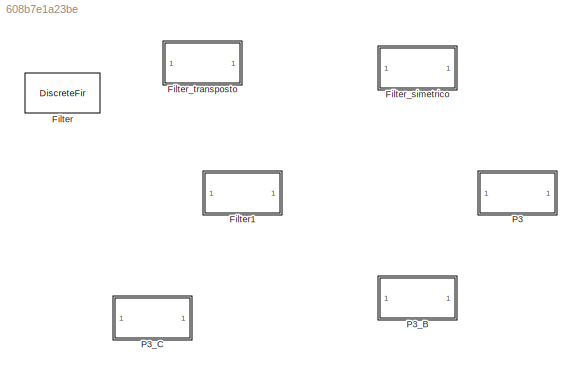
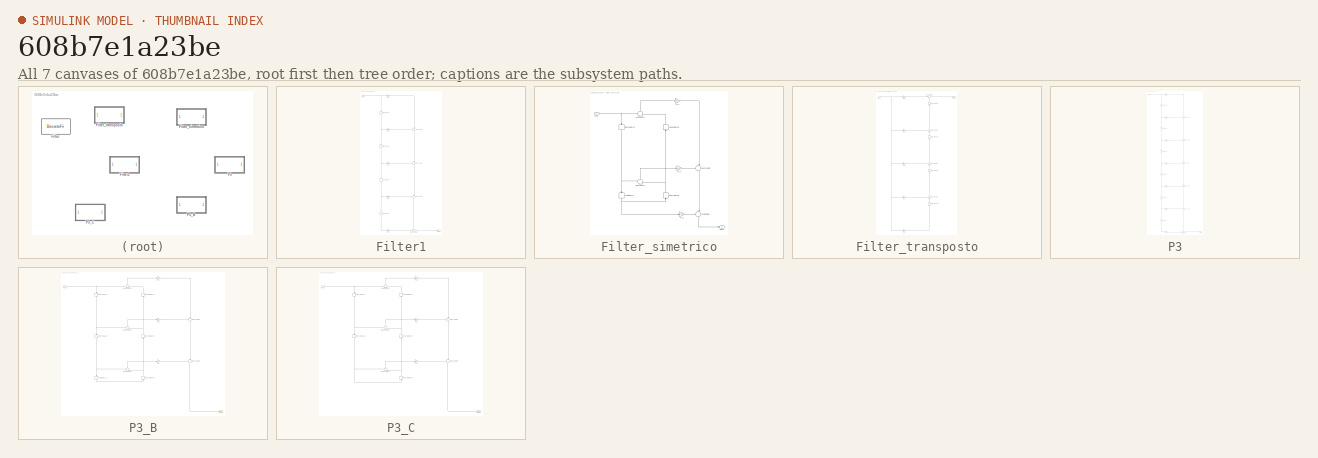
[diagram: thumbnail index - all 7 canvases of the model, root first then tree order]
MODEL slx_608b7e1a23be
KIND model
CONFIG AbsTol = auto
CONFIG FixedStep = auto
CONFIG MaxStep = auto
CONFIG MinStep = auto
CONFIG RelTol = 1e-3
CONFIG SampleTimeConstraint = Unconstrained
CONFIG Solver = ode45
CONFIG SolverMode = Auto
CONFIG SolverName = ode45
CONFIG StartTime = 0.0
CONFIG StopTime = 10.0
BLOCK [DiscreteFir] Filter
  Coefficients = [-1.3322676295501878e-16 -0.381966011250105097 0.5 -0.381966011250105097 -1.3322676295501878e-16]
  InputProcessing = Columns as channels (frame based)
  Ports = [1, 1]
  Tag = BlockMethodSubSystem
BLOCK [SubSystem] Filter1
  ErrorFcn = dspFilterRealizedInBasicElemsAlgLoopErrFcnCallback
  Ports = [1, 1]
  RequestExecContextInheritance = off
  Tag = FilterWizardSubSystem
  UserDataPersistent = on
BLOCK [Delay] Filter1/BodyDelay2
  DelayLength = 1
  InitialCondition = 0
  InputPortMap = u0
  InputProcessing = Columns as channels (frame based)
  Ports = [1, 1]
BLOCK [Delay] Filter1/BodyDelay3
  DelayLength = 1
  InitialCondition = 0
  InputPortMap = u0
  InputProcessing = Columns as channels (frame based)
  Ports = [1, 1]
BLOCK [Delay] Filter1/BodyDelay4
  DelayLength = 1
  InitialCondition = 0
  InputPortMap = u0
  InputProcessing = Columns as channels (frame based)
  Ports = [1, 1]
BLOCK [Delay] Filter1/BodyDelay5
  DelayLength = 1
  InitialCondition = 0
  InputPortMap = u0
  InputProcessing = Columns as channels (frame based)
  Ports = [1, 1]
BLOCK [Sum] Filter1/BodyLSum2
  IconShape = round
  InputSameDT = off
  Inputs = ++|
  Ports = [2, 1]
  RndMeth = Nearest
BLOCK [Sum] Filter1/BodyLSum3
  IconShape = round
  InputSameDT = off
  Inputs = ++|
  Ports = [2, 1]
  RndMeth = Nearest
BLOCK [Sum] Filter1/BodyLSum4
  IconShape = round
  InputSameDT = off
  Inputs = ++|
  Ports = [2, 1]
  RndMeth = Nearest
BLOCK [Sum] Filter1/BodyLSum5
  IconShape = round
  InputSameDT = off
  Inputs = ++|
  Ports = [2, 1]
  RndMeth = Nearest
BLOCK [Inport] Filter1/Input
  IconDisplay = Port number
BLOCK [Outport] Filter1/Output
  IconDisplay = Port number
BLOCK [Gain] Filter1/b(1)
  Gain = -1.3322676295501878e-16
  ParamDataTypeStr = double
  RndMeth = Nearest
BLOCK [Gain] Filter1/b(2)
  Gain = -0.381966011250105097
  ParamDataTypeStr = double
  RndMeth = Nearest
BLOCK [Gain] Filter1/b(3)
  Gain = 0.5
  ParamDataTypeStr = double
  RndMeth = Nearest
BLOCK [Gain] Filter1/b(4)
  Gain = -0.381966011250105097
  ParamDataTypeStr = double
  RndMeth = Nearest
BLOCK [Gain] Filter1/b(5)
  Gain = -1.3322676295501878e-16
  ParamDataTypeStr = double
  RndMeth = Nearest
BLOCK [SubSystem] Filter_simetrico
  ErrorFcn = dspFilterRealizedInBasicElemsAlgLoopErrFcnCallback
  Ports = [1, 1]
  RequestExecContextInheritance = off
  Tag = FilterWizardSubSystem
  UserDataPersistent = on
BLOCK [Delay] Filter_simetrico/BodyDelayL2
  DelayLength = 1
  InitialCondition = 0
  InputPortMap = u0
  InputProcessing = Columns as channels (frame based)
  Ports = [1, 1]
BLOCK [Delay] Filter_simetrico/BodyDelayR2
  DelayLength = 1
  InitialCondition = 0
  InputPortMap = u0
  InputProcessing = Columns as channels (frame based)
  Ports = [1, 1]
BLOCK [Sum] Filter_simetrico/BodySumL2
  IconShape = round
  InputSameDT = off
  Inputs = +|+
  Ports = [2, 1]
  RndMeth = Nearest
BLOCK [Sum] Filter_simetrico/BodySumR2
  IconShape = round
  InputSameDT = off
  Inputs = ++|
  Ports = [2, 1]
  RndMeth = Nearest
BLOCK [Delay] Filter_simetrico/FootDelayL3
  DelayLength = 1
  InitialCondition = 0
  InputPortMap = u0
  InputProcessing = Columns as channels (frame based)
  Ports = [1, 1]
BLOCK [Sum] Filter_simetrico/FootSumR3
  IconShape = round
  InputSameDT = off
  Inputs = ++|
  Ports = [2, 1]
  RndMeth = Nearest
BLOCK [Delay] Filter_simetrico/HeadDelayR1
  DelayLength = 1
  InitialCondition = 0
  InputPortMap = u0
  InputProcessing = Columns as channels (frame based)
  Ports = [1, 1]
BLOCK [Sum] Filter_simetrico/HeadSumL1
  IconShape = round
  InputSameDT = off
  Inputs = +|+
  Ports = [2, 1]
  RndMeth = Nearest
BLOCK [Inport] Filter_simetrico/Input
  IconDisplay = Port number
BLOCK [Outport] Filter_simetrico/Output
  IconDisplay = Port number
BLOCK [Gain] Filter_simetrico/h(1)
  Gain = -1.3322676295501878e-16
  ParamDataTypeStr = double
  RndMeth = Nearest
BLOCK [Gain] Filter_simetrico/h(2)
  Gain = -0.381966011250105097
  ParamDataTypeStr = double
  RndMeth = Nearest
BLOCK [Gain] Filter_simetrico/h(3)
  Gain = 0.5
  ParamDataTypeStr = double
  RndMeth = Nearest
BLOCK [SubSystem] Filter_transposto
  ErrorFcn = dspFilterRealizedInBasicElemsAlgLoopErrFcnCallback
  Ports = [1, 1]
  RequestExecContextInheritance = off
  Tag = FilterWizardSubSystem
  UserDataPersistent = on
BLOCK [Delay] Filter_transposto/BodyRDelay2
  DelayLength = 1
  InitialCondition = 0
  InputPortMap = u0
  InputProcessing = Columns as channels (frame based)
  Ports = [1, 1]
BLOCK [Delay] Filter_transposto/BodyRDelay3
  DelayLength = 1
  InitialCondition = 0
  InputPortMap = u0
  InputProcessing = Columns as channels (frame based)
  Ports = [1, 1]
BLOCK [Delay] Filter_transposto/BodyRDelay4
  DelayLength = 1
  InitialCondition = 0
  InputPortMap = u0
  InputProcessing = Columns as channels (frame based)
  Ports = [1, 1]
BLOCK [Delay] Filter_transposto/BodyRDelay5
  DelayLength = 1
  InitialCondition = 0
  InputPortMap = u0
  InputProcessing = Columns as channels (frame based)
  Ports = [1, 1]
BLOCK [Sum] Filter_transposto/BodyRSum2
  IconShape = round
  InputSameDT = off
  Inputs = ++|
  Ports = [2, 1]
  RndMeth = Nearest
BLOCK [Sum] Filter_transposto/BodyRSum3
  IconShape = round
  InputSameDT = off
  Inputs = ++|
  Ports = [2, 1]
  RndMeth = Nearest
BLOCK [Sum] Filter_transposto/BodyRSum4
  IconShape = round
  InputSameDT = off
  Inputs = ++|
  Ports = [2, 1]
  RndMeth = Nearest
BLOCK [Sum] Filter_transposto/HeadSumR1
  IconShape = round
  InputSameDT = off
  Inputs = |++
  Ports = [2, 1]
  RndMeth = Nearest
BLOCK [Inport] Filter_transposto/Input
  IconDisplay = Port number
BLOCK [Outport] Filter_transposto/Output
  IconDisplay = Port number
BLOCK [Gain] Filter_transposto/b(1)
  Gain = -1.3322676295501878e-16
  ParamDataTypeStr = double
  RndMeth = Nearest
BLOCK [Gain] Filter_transposto/b(2)
  Gain = -0.381966011250105097
  ParamDataTypeStr = double
  RndMeth = Nearest
BLOCK [Gain] Filter_transposto/b(3)
  Gain = 0.5
  ParamDataTypeStr = double
  RndMeth = Nearest
BLOCK [Gain] Filter_transposto/b(4)
  Gain = -0.381966011250105097
  ParamDataTypeStr = double
  RndMeth = Nearest
BLOCK [Gain] Filter_transposto/b(5)
  Gain = -1.3322676295501878e-16
  ParamDataTypeStr = double
  RndMeth = Nearest
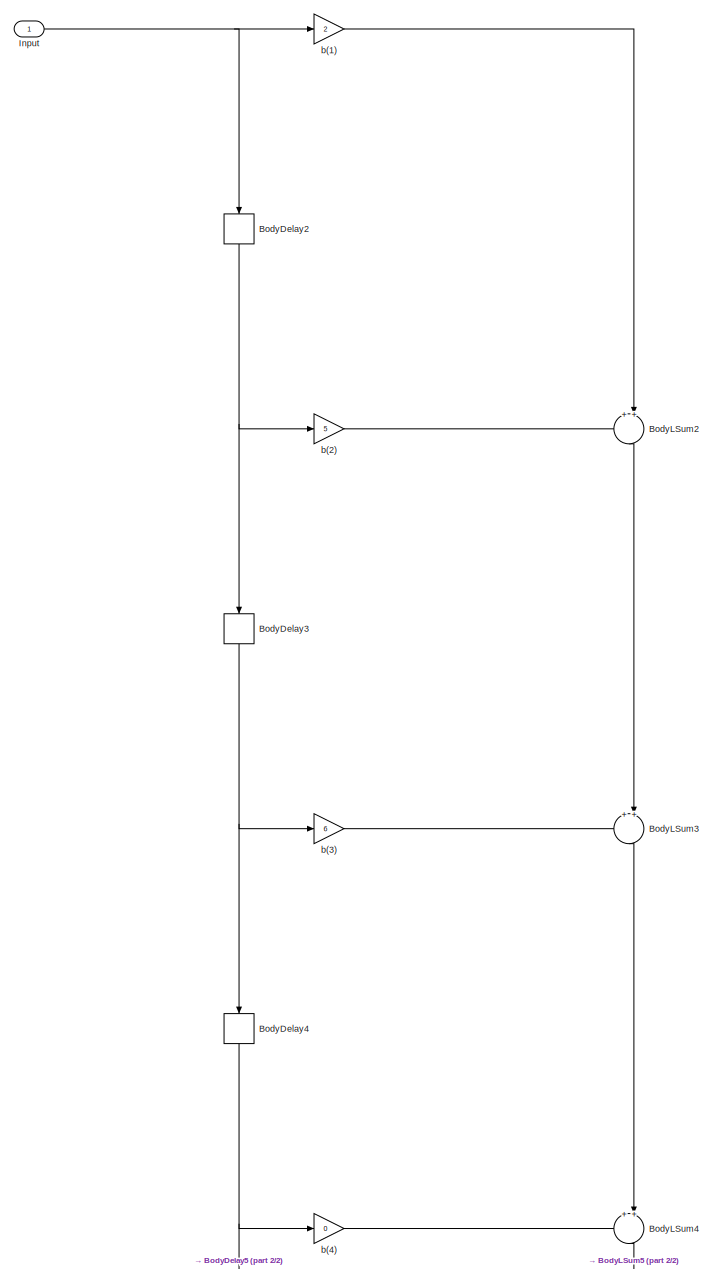
[diagram: P3 - part 1/2, full width, top band]
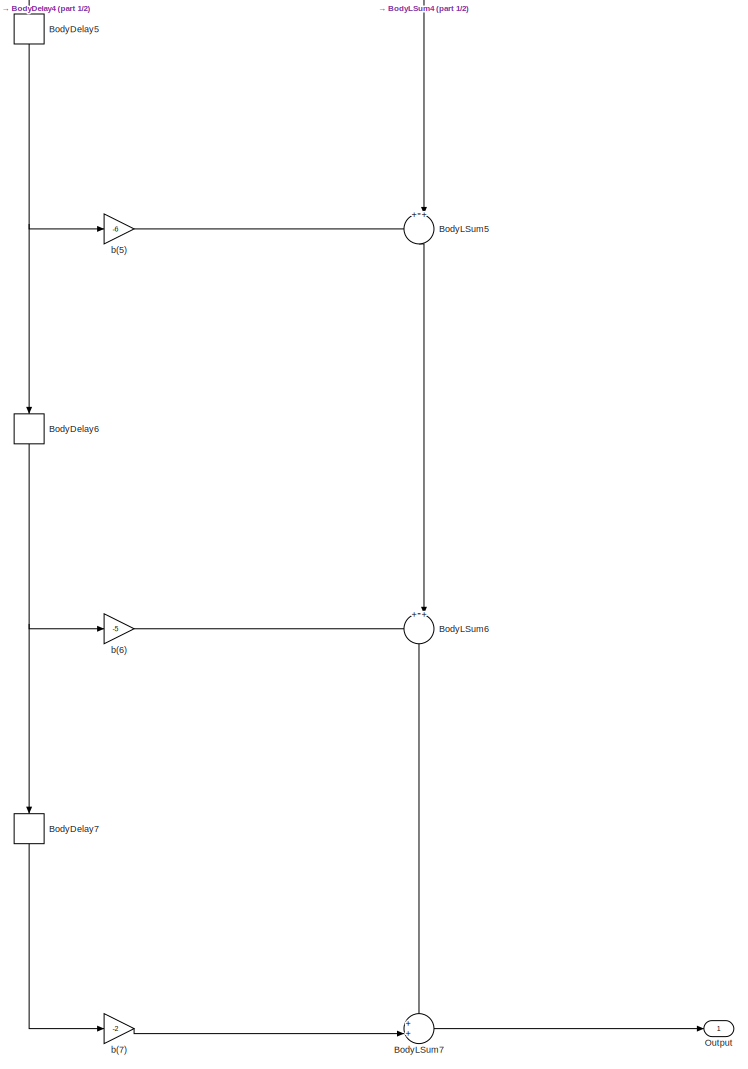
[diagram: P3 - part 2/2, full width, bottom band]
BLOCK [SubSystem] P3
  ErrorFcn = dspFilterRealizedInBasicElemsAlgLoopErrFcnCallback
  Ports = [1, 1]
  RequestExecContextInheritance = off
  Tag = FilterWizardSubSystem
  UserDataPersistent = on
BLOCK [Delay] P3/BodyDelay2
  DelayLength = 1
  InitialCondition = 0
  InputPortMap = u0
  InputProcessing = Columns as channels (frame based)
  Ports = [1, 1]
BLOCK [Delay] P3/BodyDelay3
  DelayLength = 1
  InitialCondition = 0
  InputPortMap = u0
  InputProcessing = Columns as channels (frame based)
  Ports = [1, 1]
BLOCK [Delay] P3/BodyDelay4
  DelayLength = 1
  InitialCondition = 0
  InputPortMap = u0
  InputProcessing = Columns as channels (frame based)
  Ports = [1, 1]
BLOCK [Delay] P3/BodyDelay5
  DelayLength = 1
  InitialCondition = 0
  InputPortMap = u0
  InputProcessing = Columns as channels (frame based)
  Ports = [1, 1]
BLOCK [Delay] P3/BodyDelay6
  DelayLength = 1
  InitialCondition = 0
  InputPortMap = u0
  InputProcessing = Columns as channels (frame based)
  Ports = [1, 1]
BLOCK [Delay] P3/BodyDelay7
  DelayLength = 1
  InitialCondition = 0
  InputPortMap = u0
  InputProcessing = Columns as channels (frame based)
  Ports = [1, 1]
BLOCK [Sum] P3/BodyLSum2
  IconShape = round
  InputSameDT = off
  Inputs = ++|
  Ports = [2, 1]
  RndMeth = Nearest
BLOCK [Sum] P3/BodyLSum3
  IconShape = round
  InputSameDT = off
  Inputs = ++|
  Ports = [2, 1]
  RndMeth = Nearest
BLOCK [Sum] P3/BodyLSum4
  IconShape = round
  InputSameDT = off
  Inputs = ++|
  Ports = [2, 1]
  RndMeth = Nearest
BLOCK [Sum] P3/BodyLSum5
  IconShape = round
  InputSameDT = off
  Inputs = ++|
  Ports = [2, 1]
  RndMeth = Nearest
BLOCK [Sum] P3/BodyLSum6
  IconShape = round
  InputSameDT = off
  Inputs = ++|
  Ports = [2, 1]
  RndMeth = Nearest
BLOCK [Sum] P3/BodyLSum7
  IconShape = round
  InputSameDT = off
  Inputs = ++|
  Ports = [2, 1]
  RndMeth = Nearest
BLOCK [Inport] P3/Input
  IconDisplay = Port number
BLOCK [Outport] P3/Output
  IconDisplay = Port number
BLOCK [Gain] P3/b(1)
  Gain = 2
  ParamDataTypeStr = double
  RndMeth = Nearest
BLOCK [Gain] P3/b(2)
  Gain = 5
  ParamDataTypeStr = double
  RndMeth = Nearest
BLOCK [Gain] P3/b(3)
  Gain = 6
  ParamDataTypeStr = double
  RndMeth = Nearest
BLOCK [Gain] P3/b(4)
  Gain = 0
  ParamDataTypeStr = double
  RndMeth = Nearest
BLOCK [Gain] P3/b(5)
  Gain = -6
  ParamDataTypeStr = double
  RndMeth = Nearest
BLOCK [Gain] P3/b(6)
  Gain = -5
  ParamDataTypeStr = double
  RndMeth = Nearest
BLOCK [Gain] P3/b(7)
  Gain = -2
  ParamDataTypeStr = double
  RndMeth = Nearest
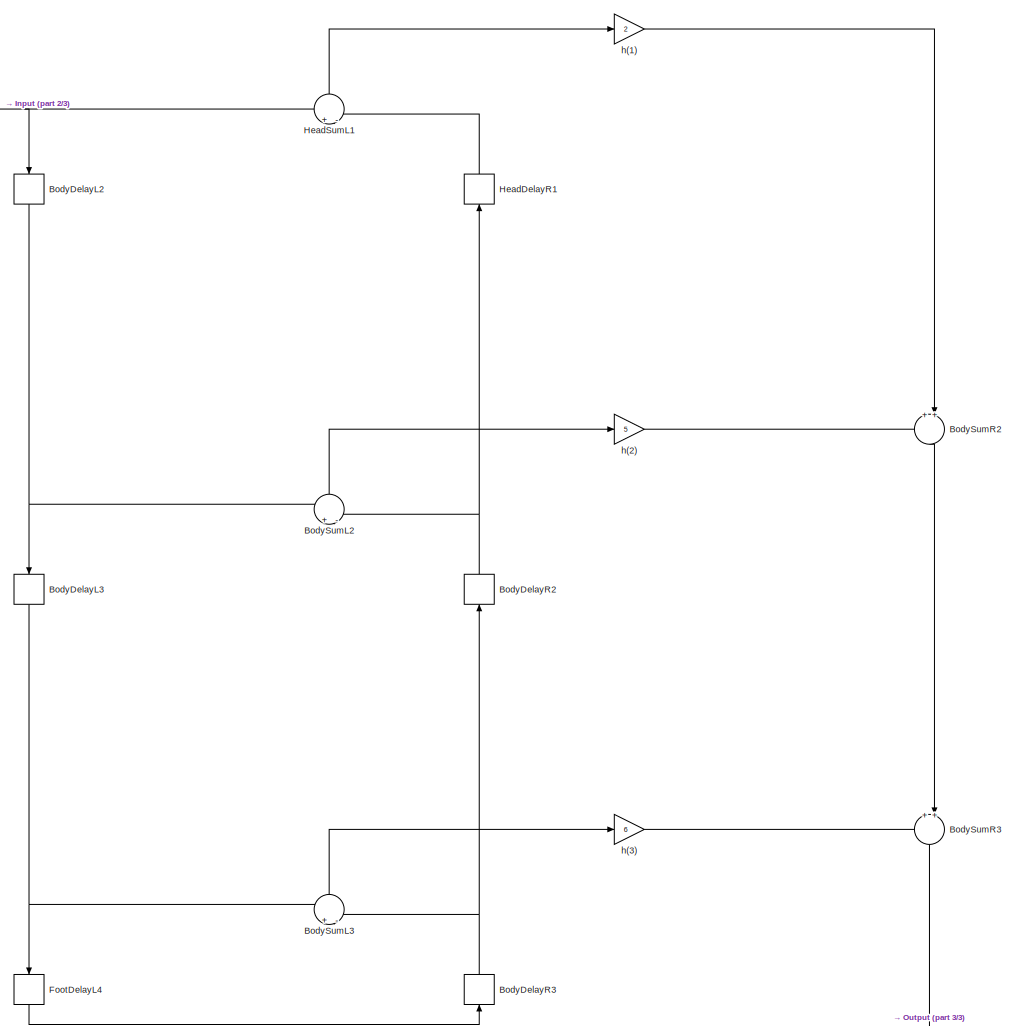
[diagram: P3_B - part 1/3, center side, full height]
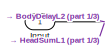
[diagram: P3_B - part 2/3, top left region]
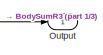
[diagram: P3_B - part 3/3, bottom right region]
BLOCK [SubSystem] P3_B
  ErrorFcn = dspFilterRealizedInBasicElemsAlgLoopErrFcnCallback
  Ports = [1, 1]
  RequestExecContextInheritance = off
  Tag = FilterWizardSubSystem
  UserDataPersistent = on
BLOCK [Delay] P3_B/BodyDelayL2
  DelayLength = 1
  InitialCondition = 0
  InputPortMap = u0
  InputProcessing = Columns as channels (frame based)
  Ports = [1, 1]
BLOCK [Delay] P3_B/BodyDelayL3
  DelayLength = 1
  InitialCondition = 0
  InputPortMap = u0
  InputProcessing = Columns as channels (frame based)
  Ports = [1, 1]
BLOCK [Delay] P3_B/BodyDelayR2
  DelayLength = 1
  InitialCondition = 0
  InputPortMap = u0
  InputProcessing = Columns as channels (frame based)
  Ports = [1, 1]
BLOCK [Delay] P3_B/BodyDelayR3
  DelayLength = 1
  InitialCondition = 0
  InputPortMap = u0
  InputProcessing = Columns as channels (frame based)
  Ports = [1, 1]
BLOCK [Sum] P3_B/BodySumL2
  IconShape = round
  InputSameDT = off
  Inputs = +|-
  Ports = [2, 1]
  RndMeth = Nearest
BLOCK [Sum] P3_B/BodySumL3
  IconShape = round
  InputSameDT = off
  Inputs = +|-
  Ports = [2, 1]
  RndMeth = Nearest
BLOCK [Sum] P3_B/BodySumR2
  IconShape = round
  InputSameDT = off
  Inputs = ++|
  Ports = [2, 1]
  RndMeth = Nearest
BLOCK [Sum] P3_B/BodySumR3
  IconShape = round
  InputSameDT = off
  Inputs = ++|
  Ports = [2, 1]
  RndMeth = Nearest
BLOCK [Delay] P3_B/FootDelayL4
  DelayLength = 1
  InitialCondition = 0
  InputPortMap = u0
  InputProcessing = Columns as channels (frame based)
  Ports = [1, 1]
BLOCK [Delay] P3_B/HeadDelayR1
  DelayLength = 1
  InitialCondition = 0
  InputPortMap = u0
  InputProcessing = Columns as channels (frame based)
  Ports = [1, 1]
BLOCK [Sum] P3_B/HeadSumL1
  IconShape = round
  InputSameDT = off
  Inputs = +|-
  Ports = [2, 1]
  RndMeth = Nearest
BLOCK [Inport] P3_B/Input
  IconDisplay = Port number
BLOCK [Outport] P3_B/Output
  IconDisplay = Port number
BLOCK [Gain] P3_B/h(1)
  Gain = 2
  ParamDataTypeStr = double
  RndMeth = Nearest
BLOCK [Gain] P3_B/h(2)
  Gain = 5
  ParamDataTypeStr = double
  RndMeth = Nearest
BLOCK [Gain] P3_B/h(3)
  Gain = 6
  ParamDataTypeStr = double
  RndMeth = Nearest
BLOCK [SubSystem] P3_C
  ErrorFcn = dspFilterRealizedInBasicElemsAlgLoopErrFcnCallback
  Ports = [1, 1]
  RequestExecContextInheritance = off
  Tag = FilterWizardSubSystem
  UserDataPersistent = on
BLOCK [Delay] P3_C/BodyDelayL2
  DelayLength = 1
  InitialCondition = 0
  InputPortMap = u0
  InputProcessing = Columns as channels (frame based)
  Ports = [1, 1]
BLOCK [Delay] P3_C/BodyDelayL3
  DelayLength = 1
  InitialCondition = 0
  InputPortMap = u0
  InputProcessing = Columns as channels (frame based)
  Ports = [1, 1]
BLOCK [Delay] P3_C/BodyDelayR2
  DelayLength = 1
  InitialCondition = 0
  InputPortMap = u0
  InputProcessing = Columns as channels (frame based)
  Ports = [1, 1]
BLOCK [Delay] P3_C/BodyDelayR3
  InitialCondition = 0
  InputPortMap = u0
  InputProcessing = Columns as channels (frame based)
  Ports = [1, 1]
BLOCK [Sum] P3_C/BodySumL2
  IconShape = round
  InputSameDT = off
  Inputs = +|-
  Ports = [2, 1]
  RndMeth = Nearest
BLOCK [Sum] P3_C/BodySumL3
  IconShape = round
  InputSameDT = off
  Inputs = +|-
  Ports = [2, 1]
  RndMeth = Nearest
BLOCK [Sum] P3_C/BodySumR2
  IconShape = round
  InputSameDT = off
  Inputs = ++|
  Ports = [2, 1]
  RndMeth = Nearest
BLOCK [Sum] P3_C/BodySumR3
  IconShape = round
  InputSameDT = off
  Inputs = ++|
  Ports = [2, 1]
  RndMeth = Nearest
BLOCK [Delay] P3_C/HeadDelayR1
  DelayLength = 1
  InitialCondition = 0
  InputPortMap = u0
  InputProcessing = Columns as channels (frame based)
  Ports = [1, 1]
BLOCK [Sum] P3_C/HeadSumL1
  IconShape = round
  InputSameDT = off
  Inputs = +|-
  Ports = [2, 1]
  RndMeth = Nearest
BLOCK [Inport] P3_C/Input
  IconDisplay = Port number
BLOCK [Outport] P3_C/Output
  IconDisplay = Port number
BLOCK [Gain] P3_C/h(1)
  Gain = 2
  ParamDataTypeStr = double
  RndMeth = Nearest
BLOCK [Gain] P3_C/h(2)
  Gain = 5
  ParamDataTypeStr = double
  RndMeth = Nearest
BLOCK [Gain] P3_C/h(3)
  Gain = 6
  ParamDataTypeStr = double
  RndMeth = Nearest
NET Filter1/BodyDelay2:1 -> Filter1/BodyDelay3:1, Filter1/b(2):1
NET Filter1/BodyDelay3:1 -> Filter1/BodyDelay4:1, Filter1/b(3):1
NET Filter1/BodyDelay4:1 -> Filter1/BodyDelay5:1, Filter1/b(4):1
LINE Filter1/BodyDelay5:1 -> Filter1/b(5):1
LINE Filter1/BodyLSum2:1 -> Filter1/BodyLSum3:2
LINE Filter1/BodyLSum3:1 -> Filter1/BodyLSum4:2
LINE Filter1/BodyLSum4:1 -> Filter1/BodyLSum5:1
LINE Filter1/BodyLSum5:1 -> Filter1/Output:1
NET Filter1/Input:1 -> Filter1/BodyDelay2:1, Filter1/b(1):1
LINE Filter1/b(1):1 -> Filter1/BodyLSum2:2
LINE Filter1/b(2):1 -> Filter1/BodyLSum2:1
LINE Filter1/b(3):1 -> Filter1/BodyLSum3:1
LINE Filter1/b(4):1 -> Filter1/BodyLSum4:1
LINE Filter1/b(5):1 -> Filter1/BodyLSum5:2
NET Filter_simetrico/BodyDelayL2:1 -> Filter_simetrico/BodySumL2:1, Filter_simetrico/FootDelayL3:1
NET Filter_simetrico/BodyDelayR2:1 -> Filter_simetrico/BodySumL2:2, Filter_simetrico/HeadDelayR1:1
LINE Filter_simetrico/BodySumL2:1 -> Filter_simetrico/h(2):1
LINE Filter_simetrico/BodySumR2:1 -> Filter_simetrico/FootSumR3:2
NET Filter_simetrico/FootDelayL3:1 -> Filter_simetrico/BodyDelayR2:1, Filter_simetrico/h(3):1
LINE Filter_simetrico/FootSumR3:1 -> Filter_simetrico/Output:1
LINE Filter_simetrico/HeadDelayR1:1 -> Filter_simetrico/HeadSumL1:2
LINE Filter_simetrico/HeadSumL1:1 -> Filter_simetrico/h(1):1
NET Filter_simetrico/Input:1 -> Filter_simetrico/BodyDelayL2:1, Filter_simetrico/HeadSumL1:1
LINE Filter_simetrico/h(1):1 -> Filter_simetrico/BodySumR2:2
LINE Filter_simetrico/h(2):1 -> Filter_simetrico/BodySumR2:1
LINE Filter_simetrico/h(3):1 -> Filter_simetrico/FootSumR3:1
LINE Filter_transposto/BodyRDelay2:1 -> Filter_transposto/HeadSumR1:2
LINE Filter_transposto/BodyRDelay3:1 -> Filter_transposto/BodyRSum2:2
LINE Filter_transposto/BodyRDelay4:1 -> Filter_transposto/BodyRSum3:2
LINE Filter_transposto/BodyRDelay5:1 -> Filter_transposto/BodyRSum4:2
LINE Filter_transposto/BodyRSum2:1 -> Filter_transposto/BodyRDelay2:1
LINE Filter_transposto/BodyRSum3:1 -> Filter_transposto/BodyRDelay3:1
LINE Filter_transposto/BodyRSum4:1 -> Filter_transposto/BodyRDelay4:1
LINE Filter_transposto/HeadSumR1:1 -> Filter_transposto/Output:1
NET Filter_transposto/Input:1 -> Filter_transposto/b(1):1, Filter_transposto/b(2):1, Filter_transposto/b(3):1, Filter_transposto/b(4):1, Filter_transposto/b(5):1
LINE Filter_transposto/b(1):1 -> Filter_transposto/HeadSumR1:1
LINE Filter_transposto/b(2):1 -> Filter_transposto/BodyRSum2:1
LINE Filter_transposto/b(3):1 -> Filter_transposto/BodyRSum3:1
LINE Filter_transposto/b(4):1 -> Filter_transposto/BodyRSum4:1
LINE Filter_transposto/b(5):1 -> Filter_transposto/BodyRDelay5:1
NET P3/BodyDelay2:1 -> P3/BodyDelay3:1, P3/b(2):1
NET P3/BodyDelay3:1 -> P3/BodyDelay4:1, P3/b(3):1
NET P3/BodyDelay4:1 -> P3/BodyDelay5:1, P3/b(4):1
NET P3/BodyDelay5:1 -> P3/BodyDelay6:1, P3/b(5):1
NET P3/BodyDelay6:1 -> P3/BodyDelay7:1, P3/b(6):1
LINE P3/BodyDelay7:1 -> P3/b(7):1
LINE P3/BodyLSum2:1 -> P3/BodyLSum3:2
LINE P3/BodyLSum3:1 -> P3/BodyLSum4:2
LINE P3/BodyLSum4:1 -> P3/BodyLSum5:2
LINE P3/BodyLSum5:1 -> P3/BodyLSum6:2
LINE P3/BodyLSum6:1 -> P3/BodyLSum7:1
LINE P3/BodyLSum7:1 -> P3/Output:1
NET P3/Input:1 -> P3/BodyDelay2:1, P3/b(1):1
LINE P3/b(1):1 -> P3/BodyLSum2:2
LINE P3/b(2):1 -> P3/BodyLSum2:1
LINE P3/b(3):1 -> P3/BodyLSum3:1
LINE P3/b(4):1 -> P3/BodyLSum4:1
LINE P3/b(5):1 -> P3/BodyLSum5:1
LINE P3/b(6):1 -> P3/BodyLSum6:1
LINE P3/b(7):1 -> P3/BodyLSum7:2
NET P3_B/BodyDelayL2:1 -> P3_B/BodyDelayL3:1, P3_B/BodySumL2:1
NET P3_B/BodyDelayL3:1 -> P3_B/BodySumL3:1, P3_B/FootDelayL4:1
NET P3_B/BodyDelayR2:1 -> P3_B/BodySumL2:2, P3_B/HeadDelayR1:1
NET P3_B/BodyDelayR3:1 -> P3_B/BodyDelayR2:1, P3_B/BodySumL3:2
LINE P3_B/BodySumL2:1 -> P3_B/h(2):1
LINE P3_B/BodySumL3:1 -> P3_B/h(3):1
LINE P3_B/BodySumR2:1 -> P3_B/BodySumR3:2
LINE P3_B/BodySumR3:1 -> P3_B/Output:1
LINE P3_B/FootDelayL4:1 -> P3_B/BodyDelayR3:1
LINE P3_B/HeadDelayR1:1 -> P3_B/HeadSumL1:2
LINE P3_B/HeadSumL1:1 -> P3_B/h(1):1
NET P3_B/Input:1 -> P3_B/BodyDelayL2:1, P3_B/HeadSumL1:1
LINE P3_B/h(1):1 -> P3_B/BodySumR2:2
LINE P3_B/h(2):1 -> P3_B/BodySumR2:1
LINE P3_B/h(3):1 -> P3_B/BodySumR3:1
NET P3_C/BodyDelayL2:1 -> P3_C/BodyDelayL3:1, P3_C/BodySumL2:1
NET P3_C/BodyDelayL3:1 -> P3_C/BodyDelayR3:1, P3_C/BodySumL3:1
NET P3_C/BodyDelayR2:1 -> P3_C/BodySumL2:2, P3_C/HeadDelayR1:1
NET P3_C/BodyDelayR3:1 -> P3_C/BodyDelayR2:1, P3_C/BodySumL3:2
LINE P3_C/BodySumL2:1 -> P3_C/h(2):1
LINE P3_C/BodySumL3:1 -> P3_C/h(3):1
LINE P3_C/BodySumR2:1 -> P3_C/BodySumR3:2
LINE P3_C/BodySumR3:1 -> P3_C/Output:1
LINE P3_C/HeadDelayR1:1 -> P3_C/HeadSumL1:2
LINE P3_C/HeadSumL1:1 -> P3_C/h(1):1
NET P3_C/Input:1 -> P3_C/BodyDelayL2:1, P3_C/HeadSumL1:1
LINE P3_C/h(1):1 -> P3_C/BodySumR2:2
LINE P3_C/h(2):1 -> P3_C/BodySumR2:1
LINE P3_C/h(3):1 -> P3_C/BodySumR3:1
note: NET lines group one-source signal fan-out (src -> all destinations, sorted); 1:1 wires keep LINE
